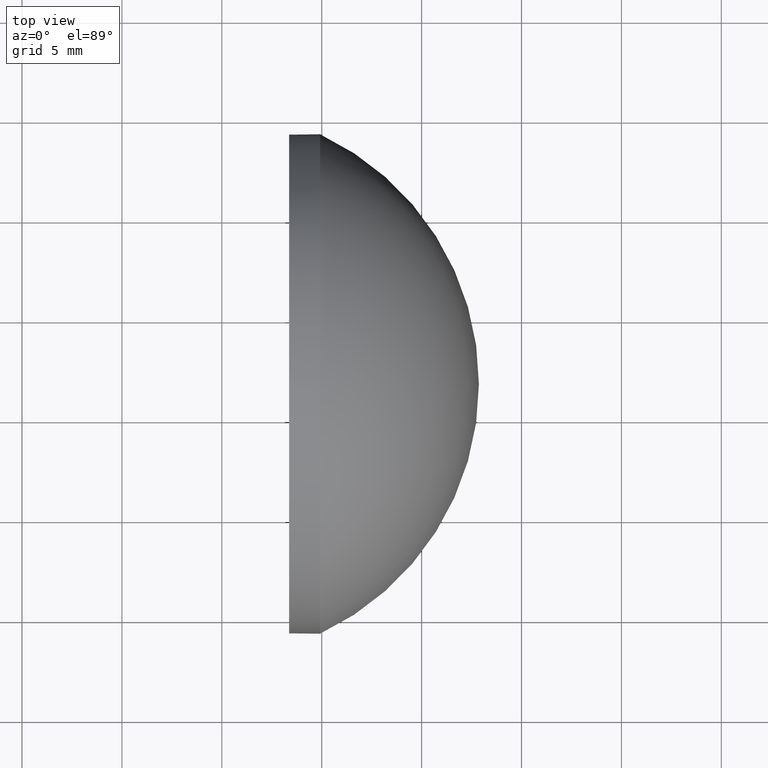
[diagram: clean part render]
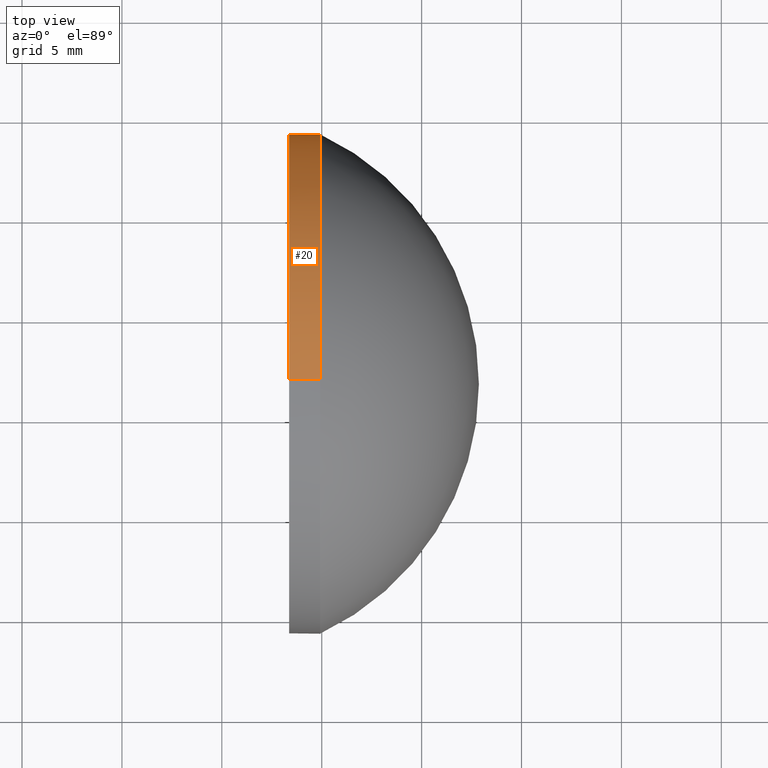
[diagram: same view with one face highlighted and labeled with its STEP entity id]
A machine part, top view. The second image highlights one B-rep face of the part: STEP entity #20.
In plain terms, the highlighted cylindrical surface (partial cylindrical patch) has radius 12.5 mm, axis along (-1, -0, -0).
Its self-contained STEP definition (entity closure, byte-faithful):
#3 = ORIENTED_EDGE ( 'NONE', *, *, #159, .F. ) ;
#14 = LINE ( 'NONE', #148, #174 ) ;
#20 = ADVANCED_FACE ( 'NONE', ( #106 ), #110, .T. ) ;
#21 = ORIENTED_EDGE ( 'NONE', *, *, #173, .F. ) ;
#23 = EDGE_LOOP ( 'NONE', ( #55, #131, #3, #21, #30 ) ) ;
#24 = CARTESIAN_POINT ( 'NONE',  ( 488.3668740075318100, 171.7156972972453600, 0.0000000000000000000 ) ) ;
#25 = CARTESIAN_POINT ( 'NONE',  ( 486.8548427656419300, 171.7156972972453600, 0.0000000000000000000 ) ) ;
#26 = DIRECTION ( 'NONE',  ( 0.0000000000000000000, 0.0000000000000000000, 1.000000000000000000 ) ) ;
#28 = CARTESIAN_POINT ( 'NONE',  ( 489.9168740075318200, 171.7156972972453600, 0.0000000000000000000 ) ) ;
#30 = ORIENTED_EDGE ( 'NONE', *, *, #43, .T. ) ;
#43 = EDGE_CURVE ( 'NONE', #100, #128, #165, .T. ) ;
#49 = VERTEX_POINT ( 'NONE', #184 ) ;
#51 = CARTESIAN_POINT ( 'NONE',  ( 489.9168740075318200, 171.7156972972453600, -12.49999999999998400 ) ) ;
#55 = ORIENTED_EDGE ( 'NONE', *, *, #59, .T. ) ;
#59 = EDGE_CURVE ( 'NONE', #128, #167, #93, .T. ) ;
#65 = DIRECTION ( 'NONE',  ( -1.000000000000000000, -0.0000000000000000000, -0.0000000000000000000 ) ) ;
#66 = DIRECTION ( 'NONE',  ( 0.0000000000000000000, 0.0000000000000000000, 1.000000000000000000 ) ) ;
#71 = DIRECTION ( 'NONE',  ( -1.000000000000000000, -0.0000000000000000000, -0.0000000000000000000 ) ) ;
#75 = CARTESIAN_POINT ( 'NONE',  ( 489.9168740075318200, 184.2156972972453600, 1.530808498934187400E-015 ) ) ;
#78 = DIRECTION ( 'NONE',  ( -1.000000000000000000, -0.0000000000000000000, -0.0000000000000000000 ) ) ;
#79 = AXIS2_PLACEMENT_3D ( 'NONE', #25, #122, #108 ) ;
#81 = CARTESIAN_POINT ( 'NONE',  ( 489.9168740075318200, 171.7156972972453600, 0.0000000000000000000 ) ) ;
#89 = DIRECTION ( 'NONE',  ( -1.000000000000000000, -0.0000000000000000000, -0.0000000000000000000 ) ) ;
#92 = EDGE_CURVE ( 'NONE', #167, #49, #130, .T. ) ;
#93 = CIRCLE ( 'NONE', #94, 12.49999999999998400 ) ;
#94 = AXIS2_PLACEMENT_3D ( 'NONE', #28, #143, #170 ) ;
#97 = AXIS2_PLACEMENT_3D ( 'NONE', #81, #71, #26 ) ;
#100 = VERTEX_POINT ( 'NONE', #103 ) ;
#103 = CARTESIAN_POINT ( 'NONE',  ( 489.9168740075318200, 171.7156972972453600, 12.49999999999998400 ) ) ;
#106 = FACE_OUTER_BOUND ( 'NONE', #23, .T. ) ;
#108 = DIRECTION ( 'NONE',  ( 0.0000000000000000000, 0.0000000000000000000, 1.000000000000000000 ) ) ;
#110 = CYLINDRICAL_SURFACE ( 'NONE', #79, 12.49999999999998400 ) ;
#121 = VERTEX_POINT ( 'NONE', #162 ) ;
#122 = DIRECTION ( 'NONE',  ( -1.000000000000000000, -0.0000000000000000000, -0.0000000000000000000 ) ) ;
#128 = VERTEX_POINT ( 'NONE', #75 ) ;
#130 = LINE ( 'NONE', #149, #183 ) ;
#131 = ORIENTED_EDGE ( 'NONE', *, *, #92, .T. ) ;
#143 = DIRECTION ( 'NONE',  ( -1.000000000000000000, -0.0000000000000000000, -0.0000000000000000000 ) ) ;
#146 = CIRCLE ( 'NONE', #147, 12.49999999999998400 ) ;
#147 = AXIS2_PLACEMENT_3D ( 'NONE', #24, #78, #66 ) ;
#148 = CARTESIAN_POINT ( 'NONE',  ( 486.8548427656419300, 171.7156972972453600, 12.49999999999998400 ) ) ;
#149 = CARTESIAN_POINT ( 'NONE',  ( 486.8548427656419300, 171.7156972972453600, -12.49999999999998400 ) ) ;
#159 = EDGE_CURVE ( 'NONE', #121, #49, #146, .T. ) ;
#162 = CARTESIAN_POINT ( 'NONE',  ( 488.3668740075318100, 171.7156972972453600, 12.49999999999998400 ) ) ;
#165 = CIRCLE ( 'NONE', #97, 12.49999999999998400 ) ;
#167 = VERTEX_POINT ( 'NONE', #51 ) ;
#170 = DIRECTION ( 'NONE',  ( 0.0000000000000000000, 0.0000000000000000000, 1.000000000000000000 ) ) ;
#173 = EDGE_CURVE ( 'NONE', #100, #121, #14, .T. ) ;
#174 = VECTOR ( 'NONE', #89, 1000.000000000000000 ) ;
#183 = VECTOR ( 'NONE', #65, 1000.000000000000000 ) ;
#184 = CARTESIAN_POINT ( 'NONE',  ( 488.3668740075318100, 171.7156972972453600, -12.49999999999998400 ) ) ;